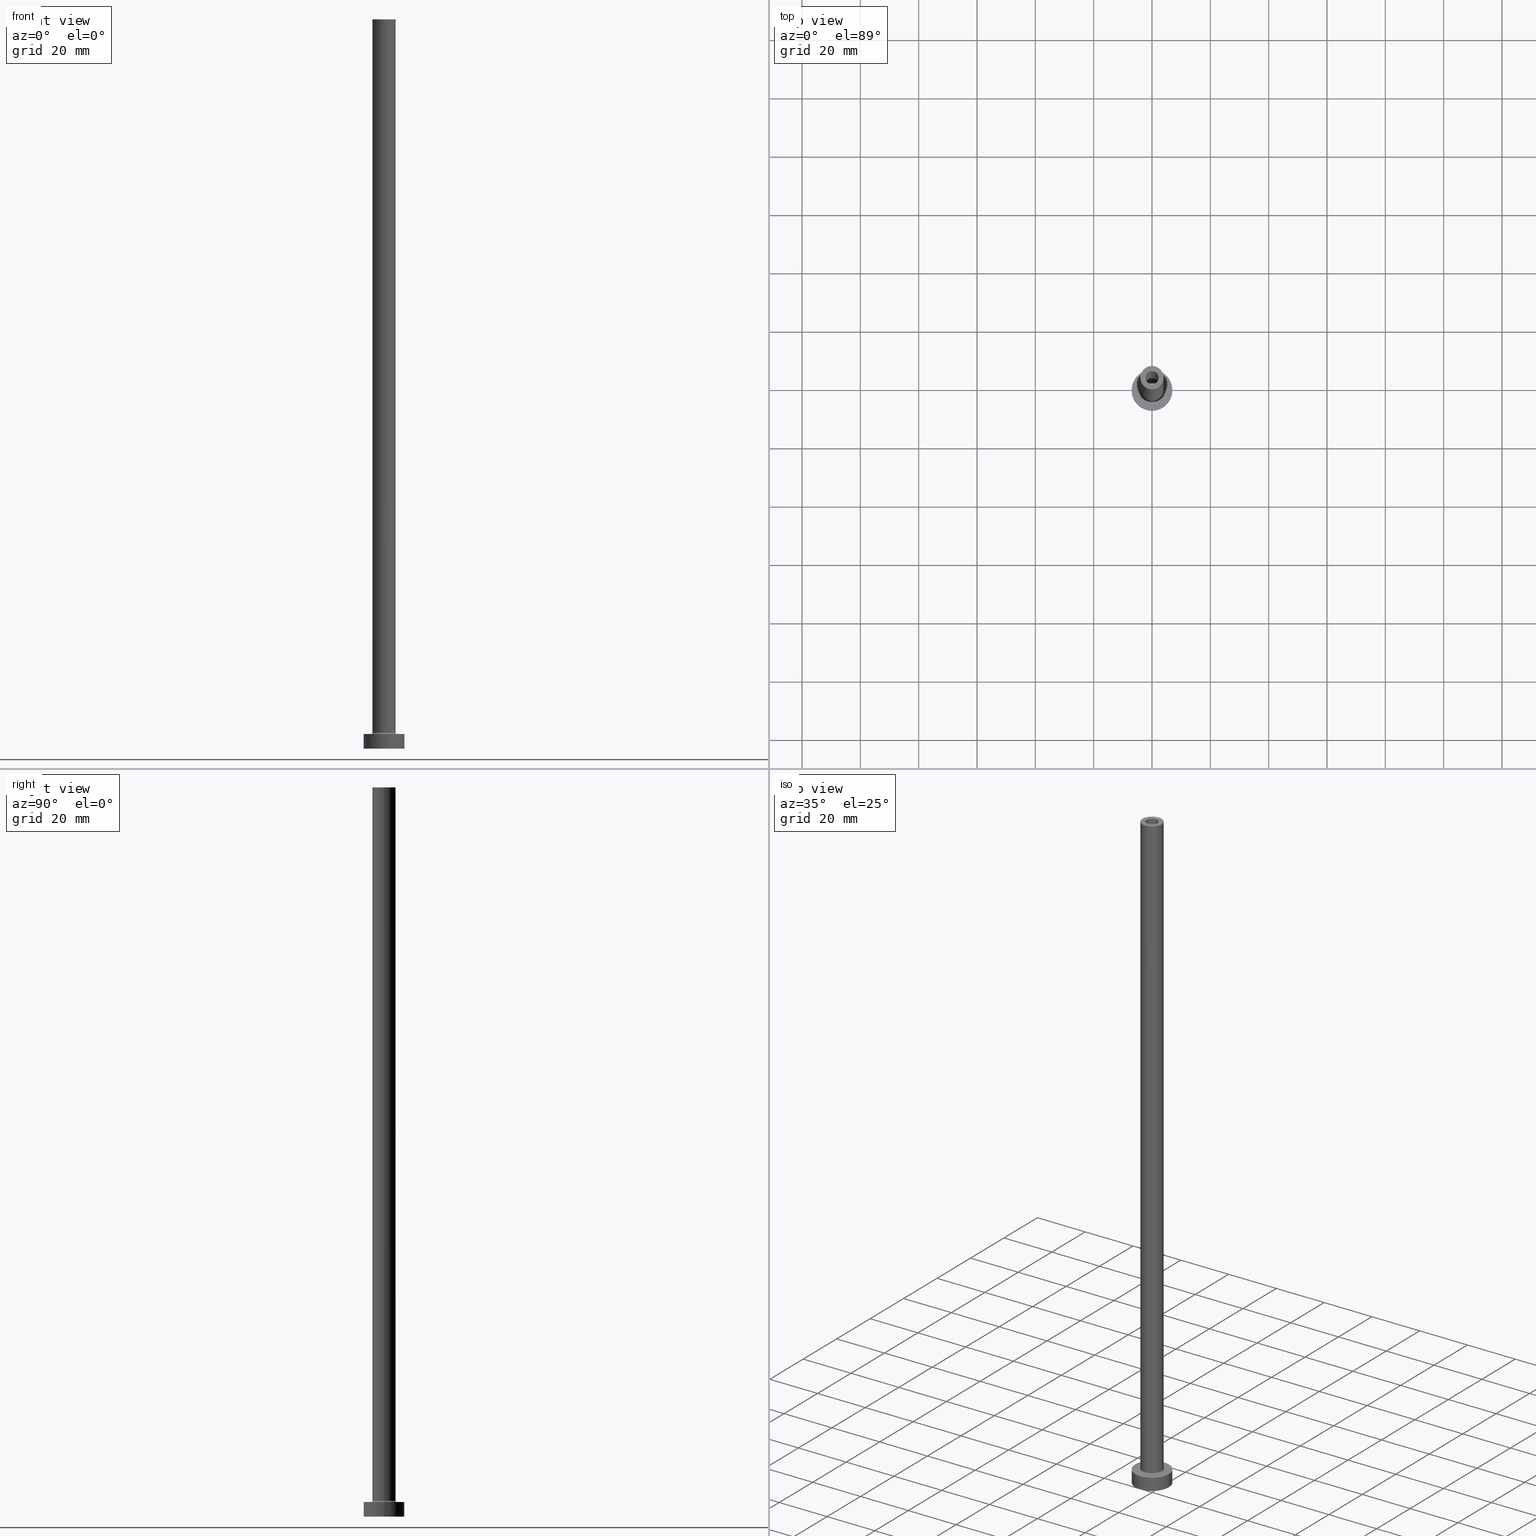
[diagram: canonical four-view strip — front | top / right | iso, engineering-drawing reading convention]
A machine part, canonical four-view strip (front | top / right | iso — engineering-drawing reading convention). The complete STEP part file that produces these views, byte-faithful:
ISO-10303-21;
HEADER;
FILE_DESCRIPTION (( 'STEP AP203' ),
    '1' );
FILE_NAME ('8f3f.STEP',
    '2023-02-13T17:22:15',
    ( '' ),
    ( '' ),
    'SwSTEP 2.0',
    'SolidWorks 2019',
    '' );
FILE_SCHEMA (( 'CONFIG_CONTROL_DESIGN' ));
ENDSEC;

DATA;
#1 = EDGE_LOOP ( 'NONE', ( #97, #18 ) ) ;
#2 = VECTOR ( 'NONE', #304, 1000.000000000000000 ) ;
#3 = LINE ( 'NONE', #150, #13 ) ;
#4 = EDGE_CURVE ( 'NONE', #28, #74, #382, .T. ) ;
#5 = EDGE_LOOP ( 'NONE', ( #38, #221 ) ) ;
#6 = CARTESIAN_POINT ( 'NONE',  ( 0.000000000000000000, 0.000000000000000000, 211.7882250993908713 ) ) ;
#7 = CARTESIAN_POINT ( 'NONE',  ( 4.500000000000000888, 0.000000000000000000, 5.500000000000005329 ) ) ;
#8 = ADVANCED_FACE ( 'NONE', ( #338, #25 ), #15, .T. ) ;
#9 = CARTESIAN_POINT ( 'NONE',  ( 0.000000000000000000, 0.000000000000000000, 205.0000000000000284 ) ) ;
#10 = PERSON_AND_ORGANIZATION ( #187, #435 ) ;
#11 = DIRECTION ( 'NONE',  ( 0.000000000000000000, 0.000000000000000000, -1.000000000000000000 ) ) ;
#12 = DIRECTION ( 'NONE',  ( -0.000000000000000000, -0.000000000000000000, -1.000000000000000000 ) ) ;
#13 = VECTOR ( 'NONE', #454, 1000.000000000000000 ) ;
#14 = DIRECTION ( 'NONE',  ( 0.000000000000000000, 0.000000000000000000, -1.000000000000000000 ) ) ;
#15 = PLANE ( 'NONE',  #316 ) ;
#16 = DIRECTION ( 'NONE',  ( 1.000000000000000000, 0.000000000000000000, 0.000000000000000000 ) ) ;
#17 = CARTESIAN_POINT ( 'NONE',  ( 0.000000000000000000, 0.000000000000000000, 0.000000000000000000 ) ) ;
#18 = ORIENTED_EDGE ( 'NONE', *, *, #226, .F. ) ;
#19 = CC_DESIGN_PERSON_AND_ORGANIZATION_ASSIGNMENT ( #406, #83, ( #320 ) ) ;
#20 = CARTESIAN_POINT ( 'NONE',  ( -2.399999999999999911, 0.000000000000000000, 211.7882250993908713 ) ) ;
#21 = CARTESIAN_POINT ( 'NONE',  ( 0.000000000000000000, 0.000000000000000000, 250.0000000000000000 ) ) ;
#22 = EDGE_LOOP ( 'NONE', ( #173, #68, #275, #366 ) ) ;
#23 = CC_DESIGN_APPROVAL ( #185, ( #254 ) ) ;
#24 = CIRCLE ( 'NONE', #373, 2.399999999999999911 ) ;
#25 = FACE_OUTER_BOUND ( 'NONE', #459, .T. ) ;
#26 = FACE_OUTER_BOUND ( 'NONE', #22, .T. ) ;
#27 = ORIENTED_EDGE ( 'NONE', *, *, #315, .F. ) ;
#28 = VERTEX_POINT ( 'NONE', #126 ) ;
#29 = CIRCLE ( 'NONE', #162, 4.000000000000000000 ) ;
#30 = LOCAL_TIME ( 18, 22, 15.00000000000000000, #417 ) ;
#31 = DIRECTION ( 'NONE',  ( -0.000000000000000000, -0.000000000000000000, -1.000000000000000000 ) ) ;
#32 = CYLINDRICAL_SURFACE ( 'NONE', #243, 2.399999999999999911 ) ;
#33 = MECHANICAL_CONTEXT ( 'NONE', #452, 'mechanical' ) ;
#34 = EDGE_LOOP ( 'NONE', ( #288, #73 ) ) ;
#35 = EDGE_CURVE ( 'NONE', #423, #246, #300, .T. ) ;
#36 = DIRECTION ( 'NONE',  ( -0.000000000000000000, -0.000000000000000000, -1.000000000000000000 ) ) ;
#37 = PRODUCT_DEFINITION_SHAPE ( 'NONE', 'NONE',  #320 ) ;
#38 = ORIENTED_EDGE ( 'NONE', *, *, #104, .T. ) ;
#39 = SECURITY_CLASSIFICATION_LEVEL ( 'unclassified' ) ;
#40 = ORIENTED_EDGE ( 'NONE', *, *, #144, .F. ) ;
#41 = PERSON_AND_ORGANIZATION ( #187, #435 ) ;
#42 = EDGE_CURVE ( 'NONE', #211, #176, #177, .T. ) ;
#43 = CARTESIAN_POINT ( 'NONE',  ( -4.500000000000000888, 5.510910596163088569E-16, 5.000000000000002665 ) ) ;
#44 = PERSON_AND_ORGANIZATION ( #187, #435 ) ;
#45 = CARTESIAN_POINT ( 'NONE',  ( 0.000000000000000000, 0.000000000000000000, 250.0000000000000000 ) ) ;
#46 = SECURITY_CLASSIFICATION ( '', '', #39 ) ;
#47 = AXIS2_PLACEMENT_3D ( 'NONE', #236, #378, #390 ) ;
#48 = FACE_OUTER_BOUND ( 'NONE', #414, .T. ) ;
#49 = EDGE_CURVE ( 'NONE', #324, #415, #403, .T. ) ;
#50 = DIRECTION ( 'NONE',  ( 0.000000000000000000, -1.000000000000000000, 0.000000000000000000 ) ) ;
#51 = DIRECTION ( 'NONE',  ( -0.000000000000000000, -0.000000000000000000, -1.000000000000000000 ) ) ;
#52 = CIRCLE ( 'NONE', #175, 7.000000000000000000 ) ;
#53 = CC_DESIGN_APPROVAL ( #200, ( #46 ) ) ;
#54 = ORIENTED_EDGE ( 'NONE', *, *, #315, .T. ) ;
#55 = DIRECTION ( 'NONE',  ( 1.000000000000000000, 0.000000000000000000, 0.000000000000000000 ) ) ;
#56 = EDGE_CURVE ( 'NONE', #271, #346, #170, .T. ) ;
#57 = FACE_OUTER_BOUND ( 'NONE', #455, .T. ) ;
#58 = LINE ( 'NONE', #308, #130 ) ;
#59 = DIRECTION ( 'NONE',  ( 0.000000000000000000, 0.000000000000000000, 1.000000000000000000 ) ) ;
#60 = VECTOR ( 'NONE', #14, 1000.000000000000000 ) ;
#61 = AXIS2_PLACEMENT_3D ( 'NONE', #432, #147, #113 ) ;
#62 = ADVANCED_FACE ( 'NONE', ( #26 ), #306, .T. ) ;
#63 = CARTESIAN_POINT ( 'NONE',  ( 2.399999999999999911, 2.939152317953647106E-16, 0.000000000000000000 ) ) ;
#64 = DIRECTION ( 'NONE',  ( 0.000000000000000000, 0.000000000000000000, 1.000000000000000000 ) ) ;
#65 = CARTESIAN_POINT ( 'NONE',  ( 0.000000000000000000, 0.000000000000000000, 0.000000000000000000 ) ) ;
#66 = COORDINATED_UNIVERSAL_TIME_OFFSET ( 1, 0, .AHEAD. ) ;
#67 = FACE_BOUND ( 'NONE', #281, .T. ) ;
#68 = ORIENTED_EDGE ( 'NONE', *, *, #430, .T. ) ;
#69 = APPROVAL ( #334, 'NEUR�EN�' ) ;
#70 = DIRECTION ( 'NONE',  ( 1.000000000000000000, 0.000000000000000000, -0.000000000000000000 ) ) ;
#71 = CARTESIAN_POINT ( 'NONE',  ( 0.000000000000000000, 0.000000000000000000, 0.000000000000000000 ) ) ;
#72 = PERSON_AND_ORGANIZATION ( #187, #435 ) ;
#73 = ORIENTED_EDGE ( 'NONE', *, *, #443, .T. ) ;
#74 = VERTEX_POINT ( 'NONE', #93 ) ;
#75 = FACE_OUTER_BOUND ( 'NONE', #204, .T. ) ;
#76 = CARTESIAN_POINT ( 'NONE',  ( 0.000000000000000000, 0.000000000000000000, 250.0000000000000000 ) ) ;
#77 = COORDINATED_UNIVERSAL_TIME_OFFSET ( 1, 0, .AHEAD. ) ;
#78 = FACE_OUTER_BOUND ( 'NONE', #94, .T. ) ;
#79 = TOROIDAL_SURFACE ( 'NONE', #61, 4.500000000000000888, 0.5000000000000000000 ) ;
#80 = CIRCLE ( 'NONE', #349, 2.250000000000000000 ) ;
#81 = EDGE_CURVE ( 'NONE', #28, #309, #117, .T. ) ;
#82 = PLANE ( 'NONE',  #397 ) ;
#83 = PERSON_AND_ORGANIZATION_ROLE ( 'creator' ) ;
#84 = CARTESIAN_POINT ( 'NONE',  ( 0.000000000000000000, 0.000000000000000000, 205.0000000000000284 ) ) ;
#85 = DATE_AND_TIME ( #215, #30 ) ;
#86 = DIRECTION ( 'NONE',  ( 0.000000000000000000, 0.000000000000000000, 1.000000000000000000 ) ) ;
#87 = EDGE_CURVE ( 'NONE', #415, #169, #58, .T. ) ;
#88 = CC_DESIGN_SECURITY_CLASSIFICATION ( #46, ( #254 ) ) ;
#89 = LOCAL_TIME ( 18, 22, 15.00000000000000000, #77 ) ;
#90 = AXIS2_PLACEMENT_3D ( 'NONE', #270, #92, #168 ) ;
#91 = DIRECTION ( 'NONE',  ( -1.000000000000000000, 0.000000000000000000, 0.000000000000000000 ) ) ;
#92 = DIRECTION ( 'NONE',  ( 1.224646799147353207E-16, 1.000000000000000000, -0.000000000000000000 ) ) ;
#93 = CARTESIAN_POINT ( 'NONE',  ( 4.000000000000000000, 4.898587196589412829E-16, 5.500000000000005329 ) ) ;
#94 = EDGE_LOOP ( 'NONE', ( #109, #146 ) ) ;
#95 = CARTESIAN_POINT ( 'NONE',  ( 0.000000000000000000, 0.000000000000000000, 5.000000000000000000 ) ) ;
#96 = AXIS2_PLACEMENT_3D ( 'NONE', #190, #364, #160 ) ;
#97 = ORIENTED_EDGE ( 'NONE', *, *, #49, .F. ) ;
#98 = AXIS2_PLACEMENT_3D ( 'NONE', #267, #231, #55 ) ;
#99 = CC_DESIGN_PERSON_AND_ORGANIZATION_ASSIGNMENT ( #181, #212, ( #46 ) ) ;
#100 = APPLICATION_PROTOCOL_DEFINITION ( 'international standard', 'config_control_design', 1994, #452 ) ;
#101 = ORIENTED_EDGE ( 'NONE', *, *, #137, .F. ) ;
#102 = DIRECTION ( 'NONE',  ( 0.000000000000000000, 0.000000000000000000, 1.000000000000000000 ) ) ;
#103 = DIRECTION ( 'NONE',  ( 0.000000000000000000, 0.000000000000000000, 1.000000000000000000 ) ) ;
#104 = EDGE_CURVE ( 'NONE', #176, #211, #248, .T. ) ;
#105 = ORIENTED_EDGE ( 'NONE', *, *, #421, .F. ) ;
#106 = LOCAL_TIME ( 18, 22, 15.00000000000000000, #66 ) ;
#107 = CARTESIAN_POINT ( 'NONE',  ( 0.000000000000000000, 0.000000000000000000, 211.7882250993908713 ) ) ;
#108 = CALENDAR_DATE ( 2023, 13, 2 ) ;
#109 = ORIENTED_EDGE ( 'NONE', *, *, #400, .T. ) ;
#110 = DIRECTION ( 'NONE',  ( 1.000000000000000000, 0.000000000000000000, 0.000000000000000000 ) ) ;
#111 = DIRECTION ( 'NONE',  ( 1.000000000000000000, 0.000000000000000000, 0.000000000000000000 ) ) ;
#112 = APPROVAL_DATE_TIME ( #207, #185 ) ;
#113 = DIRECTION ( 'NONE',  ( 1.000000000000000000, 0.000000000000000000, 0.000000000000000000 ) ) ;
#114 = EDGE_CURVE ( 'NONE', #339, #169, #24, .T. ) ;
#115 = SHAPE_DEFINITION_REPRESENTATION ( #37, #313 ) ;
#116 = DIRECTION ( 'NONE',  ( -0.000000000000000000, -0.000000000000000000, -1.000000000000000000 ) ) ;
#117 = CIRCLE ( 'NONE', #90, 0.5000000000000004441 ) ;
#118 = APPROVAL_ROLE ( '' ) ;
#119 = FACE_BOUND ( 'NONE', #34, .T. ) ;
#120 = PRODUCT_RELATED_PRODUCT_CATEGORY ( 'detail', '', ( #152 ) ) ;
#121 = AXIS2_PLACEMENT_3D ( 'NONE', #193, #448, #199 ) ;
#122 = CIRCLE ( 'NONE', #224, 2.399999999999999911 ) ;
#123 = FACE_OUTER_BOUND ( 'NONE', #396, .T. ) ;
#124 = ORIENTED_EDGE ( 'NONE', *, *, #178, .F. ) ;
#125 = EDGE_CURVE ( 'NONE', #169, #339, #278, .T. ) ;
#126 = CARTESIAN_POINT ( 'NONE',  ( -4.000000000000000000, 0.000000000000000000, 5.500000000000005329 ) ) ;
#127 = CYLINDRICAL_SURFACE ( 'NONE', #121, 2.250000000000000000 ) ;
#128 = ORIENTED_EDGE ( 'NONE', *, *, #400, .F. ) ;
#129 = EDGE_LOOP ( 'NONE', ( #461, #237, #132, #352 ) ) ;
#130 = VECTOR ( 'NONE', #450, 1000.000000000000000 ) ;
#131 = CARTESIAN_POINT ( 'NONE',  ( -4.000000000000000000, 0.000000000000000000, 250.0000000000000000 ) ) ;
#132 = ORIENTED_EDGE ( 'NONE', *, *, #137, .T. ) ;
#133 = ORIENTED_EDGE ( 'NONE', *, *, #56, .T. ) ;
#134 = CARTESIAN_POINT ( 'NONE',  ( 4.000000000000000000, 4.898587196589412829E-16, 250.0000000000000000 ) ) ;
#135 = ORIENTED_EDGE ( 'NONE', *, *, #56, .F. ) ;
#136 = VERTEX_POINT ( 'NONE', #353 ) ;
#137 = EDGE_CURVE ( 'NONE', #205, #176, #460, .T. ) ;
#138 = CARTESIAN_POINT ( 'NONE',  ( 0.000000000000000000, 0.000000000000000000, 0.000000000000000000 ) ) ;
#139 = ORIENTED_EDGE ( 'NONE', *, *, #4, .F. ) ;
#140 = AXIS2_PLACEMENT_3D ( 'NONE', #17, #59, #345 ) ;
#141 = AXIS2_PLACEMENT_3D ( 'NONE', #153, #294, #298 ) ;
#142 = DIRECTION ( 'NONE',  ( 1.000000000000000000, 0.000000000000000000, 0.000000000000000000 ) ) ;
#143 = ORIENTED_EDGE ( 'NONE', *, *, #114, .T. ) ;
#144 = EDGE_CURVE ( 'NONE', #228, #271, #3, .T. ) ;
#145 = DIRECTION ( 'NONE',  ( 0.000000000000000000, 0.000000000000000000, -1.000000000000000000 ) ) ;
#146 = ORIENTED_EDGE ( 'NONE', *, *, #421, .T. ) ;
#147 = DIRECTION ( 'NONE',  ( 0.000000000000000000, 0.000000000000000000, 1.000000000000000000 ) ) ;
#148 = ORIENTED_EDGE ( 'NONE', *, *, #196, .T. ) ;
#149 = AXIS2_PLACEMENT_3D ( 'NONE', #7, #50, #161 ) ;
#150 = CARTESIAN_POINT ( 'NONE',  ( 7.000000000000000000, 8.572527594031473190E-16, 5.000000000000000000 ) ) ;
#151 = ORIENTED_EDGE ( 'NONE', *, *, #49, .T. ) ;
#152 = PRODUCT ( '8f3f', '8f3f', '', ( #33 ) ) ;
#153 = CARTESIAN_POINT ( 'NONE',  ( 0.000000000000000000, 0.000000000000000000, 5.000000000000000000 ) ) ;
#154 = ADVANCED_FACE ( 'NONE', ( #67, #321 ), #290, .F. ) ;
#155 = PLANE ( 'NONE',  #141 ) ;
#156 = AXIS2_PLACEMENT_3D ( 'NONE', #444, #348, #301 ) ;
#157 = AXIS2_PLACEMENT_3D ( 'NONE', #166, #412, #351 ) ;
#158 = LINE ( 'NONE', #291, #404 ) ;
#159 = CC_DESIGN_PERSON_AND_ORGANIZATION_ASSIGNMENT ( #10, #220, ( #152 ) ) ;
#160 = DIRECTION ( 'NONE',  ( -1.000000000000000000, 0.000000000000000000, 0.000000000000000000 ) ) ;
#161 = DIRECTION ( 'NONE',  ( 0.000000000000000000, 0.000000000000000000, -1.000000000000000000 ) ) ;
#162 = AXIS2_PLACEMENT_3D ( 'NONE', #401, #399, #219 ) ;
#163 = CARTESIAN_POINT ( 'NONE',  ( 0.000000000000000000, 0.000000000000000000, 5.000000000000000000 ) ) ;
#164 = CARTESIAN_POINT ( 'NONE',  ( -7.000000000000000000, 0.000000000000000000, 5.000000000000000000 ) ) ;
#165 = APPROVAL_ROLE ( '' ) ;
#166 = CARTESIAN_POINT ( 'NONE',  ( 0.000000000000000000, 0.000000000000000000, 205.0000000000000284 ) ) ;
#167 = CARTESIAN_POINT ( 'NONE',  ( -7.000000000000000000, 0.000000000000000000, 0.000000000000000000 ) ) ;
#168 = DIRECTION ( 'NONE',  ( -1.000000000000000000, 1.224646799147351482E-16, 0.000000000000000000 ) ) ;
#169 = VERTEX_POINT ( 'NONE', #63 ) ;
#170 = CIRCLE ( 'NONE', #140, 7.000000000000000000 ) ;
#171 = LINE ( 'NONE', #134, #194 ) ;
#172 = ADVANCED_FACE ( 'NONE', ( #244 ), #239, .F. ) ;
#173 = ORIENTED_EDGE ( 'NONE', *, *, #222, .F. ) ;
#174 = CARTESIAN_POINT ( 'NONE',  ( 0.000000000000000000, 0.000000000000000000, 0.000000000000000000 ) ) ;
#175 = AXIS2_PLACEMENT_3D ( 'NONE', #174, #458, #142 ) ;
#176 = VERTEX_POINT ( 'NONE', #384 ) ;
#177 = CIRCLE ( 'NONE', #157, 2.250000000000000000 ) ;
#178 = EDGE_CURVE ( 'NONE', #346, #271, #52, .T. ) ;
#179 = CARTESIAN_POINT ( 'NONE',  ( 0.000000000000000000, 0.000000000000000000, 250.0000000000000000 ) ) ;
#180 = ORIENTED_EDGE ( 'NONE', *, *, #443, .F. ) ;
#181 = PERSON_AND_ORGANIZATION ( #187, #435 ) ;
#182 = DIRECTION ( 'NONE',  ( 1.000000000000000000, 0.000000000000000000, 0.000000000000000000 ) ) ;
#183 =( NAMED_UNIT ( * ) PLANE_ANGLE_UNIT ( ) SI_UNIT ( $, .RADIAN. ) );
#184 = DATE_AND_TIME ( #186, #347 ) ;
#185 = APPROVAL ( #436, 'NEUR�EN�' ) ;
#186 = CALENDAR_DATE ( 2023, 13, 2 ) ;
#187 = PERSON ( 'NEUR�EN�', 'NEUR�EN�', 'NEUR�EN�', ('NEUR�EN�'), ('NEUR�EN�'), ('NEUR�EN�') ) ;
#188 = ADVANCED_FACE ( 'NONE', ( #280 ), #426, .T. ) ;
#189 = DIRECTION ( 'NONE',  ( 1.000000000000000000, 0.000000000000000000, 0.000000000000000000 ) ) ;
#190 = CARTESIAN_POINT ( 'NONE',  ( 0.000000000000000000, 0.000000000000000000, 250.0000000000000000 ) ) ;
#191 = DATE_AND_TIME ( #408, #287 ) ;
#192 = VECTOR ( 'NONE', #145, 1000.000000000000000 ) ;
#193 = CARTESIAN_POINT ( 'NONE',  ( 0.000000000000000000, 0.000000000000000000, 250.0000000000000000 ) ) ;
#194 = VECTOR ( 'NONE', #12, 1000.000000000000000 ) ;
#195 = ORIENTED_EDGE ( 'NONE', *, *, #81, .F. ) ;
#196 = EDGE_CURVE ( 'NONE', #205, #136, #216, .T. ) ;
#197 = CARTESIAN_POINT ( 'NONE',  ( -2.399999999999999911, 0.000000000000000000, 0.000000000000000000 ) ) ;
#198 = ORIENTED_EDGE ( 'NONE', *, *, #365, .T. ) ;
#199 = DIRECTION ( 'NONE',  ( -1.000000000000000000, 0.000000000000000000, 0.000000000000000000 ) ) ;
#200 = APPROVAL ( #329, 'NEUR�EN�' ) ;
#201 = CARTESIAN_POINT ( 'NONE',  ( 2.250000000000000000, 2.755455298081543792E-16, 250.0000000000000000 ) ) ;
#202 = AXIS2_PLACEMENT_3D ( 'NONE', #272, #86, #16 ) ;
#203 =( GEOMETRIC_REPRESENTATION_CONTEXT ( 3 ) GLOBAL_UNCERTAINTY_ASSIGNED_CONTEXT ( ( #361 ) ) GLOBAL_UNIT_ASSIGNED_CONTEXT ( ( #284, #183, #431 ) ) REPRESENTATION_CONTEXT ( 'NONE', 'WORKASPACE' ) );
#204 = EDGE_LOOP ( 'NONE', ( #277, #343, #429, #245 ) ) ;
#205 = VERTEX_POINT ( 'NONE', #424 ) ;
#206 = DIRECTION ( 'NONE',  ( 0.000000000000000000, 0.000000000000000000, 1.000000000000000000 ) ) ;
#207 = DATE_AND_TIME ( #383, #89 ) ;
#208 = DIRECTION ( 'NONE',  ( 1.000000000000000000, 0.000000000000000000, 0.000000000000000000 ) ) ;
#209 = ORIENTED_EDGE ( 'NONE', *, *, #114, .F. ) ;
#210 = CLOSED_SHELL ( 'NONE', ( #257, #214, #172, #62, #340, #188, #269, #154, #279, #8, #437, #234, #303, #380 ) ) ;
#211 = VERTEX_POINT ( 'NONE', #388 ) ;
#212 = PERSON_AND_ORGANIZATION_ROLE ( 'classification_officer' ) ;
#213 = ORIENTED_EDGE ( 'NONE', *, *, #144, .T. ) ;
#214 = ADVANCED_FACE ( 'NONE', ( #358 ), #32, .F. ) ;
#215 = CALENDAR_DATE ( 2023, 13, 2 ) ;
#216 = CIRCLE ( 'NONE', #276, 2.250000000000000000 ) ;
#217 = AXIS2_PLACEMENT_3D ( 'NONE', #163, #326, #255 ) ;
#218 = DESIGN_CONTEXT ( 'detailed design', #293, 'design' ) ;
#219 = DIRECTION ( 'NONE',  ( 1.000000000000000000, 0.000000000000000000, 0.000000000000000000 ) ) ;
#220 = PERSON_AND_ORGANIZATION_ROLE ( 'design_owner' ) ;
#221 = ORIENTED_EDGE ( 'NONE', *, *, #42, .T. ) ;
#222 = EDGE_CURVE ( 'NONE', #246, #423, #29, .T. ) ;
#223 = CARTESIAN_POINT ( 'NONE',  ( 4.000000000000000000, 4.898587196589412829E-16, 250.0000000000000000 ) ) ;
#224 = AXIS2_PLACEMENT_3D ( 'NONE', #438, #332, #110 ) ;
#225 = CARTESIAN_POINT ( 'NONE',  ( 4.500000000000000888, 0.000000000000000000, 5.000000000000002665 ) ) ;
#226 = EDGE_CURVE ( 'NONE', #415, #324, #122, .T. ) ;
#227 = LINE ( 'NONE', #131, #440 ) ;
#228 = VERTEX_POINT ( 'NONE', #330 ) ;
#229 = AXIS2_PLACEMENT_3D ( 'NONE', #422, #31, #385 ) ;
#230 = CC_DESIGN_APPROVAL ( #69, ( #320 ) ) ;
#231 = DIRECTION ( 'NONE',  ( 0.000000000000000000, 0.000000000000000000, 1.000000000000000000 ) ) ;
#232 = ORIENTED_EDGE ( 'NONE', *, *, #357, .F. ) ;
#233 = EDGE_LOOP ( 'NONE', ( #247, #283 ) ) ;
#234 = ADVANCED_FACE ( 'NONE', ( #48 ), #371, .F. ) ;
#235 = MANIFOLD_SOLID_BREP ( 'Odebrat vysunut�m4', #210 ) ;
#236 = CARTESIAN_POINT ( 'NONE',  ( 0.000000000000000000, 0.000000000000000000, 205.0000000000000284 ) ) ;
#237 = ORIENTED_EDGE ( 'NONE', *, *, #299, .T. ) ;
#238 = CARTESIAN_POINT ( 'NONE',  ( 0.000000000000000000, 0.000000000000000000, 5.000000000000000000 ) ) ;
#239 = TOROIDAL_SURFACE ( 'NONE', #456, 4.500000000000000888, 0.5000000000000000000 ) ;
#240 = APPROVAL_PERSON_ORGANIZATION ( #297, #185, #118 ) ;
#241 = CARTESIAN_POINT ( 'NONE',  ( 0.000000000000000000, 0.000000000000000000, 5.500000000000005329 ) ) ;
#242 = EDGE_LOOP ( 'NONE', ( #40, #128, #54, #411 ) ) ;
#243 = AXIS2_PLACEMENT_3D ( 'NONE', #107, #250, #335 ) ;
#244 = FACE_OUTER_BOUND ( 'NONE', #379, .T. ) ;
#245 = ORIENTED_EDGE ( 'NONE', *, *, #4, .T. ) ;
#246 = VERTEX_POINT ( 'NONE', #223 ) ;
#247 = ORIENTED_EDGE ( 'NONE', *, *, #196, .F. ) ;
#248 = CIRCLE ( 'NONE', #47, 2.250000000000000000 ) ;
#249 = PERSON_AND_ORGANIZATION_ROLE ( 'creator' ) ;
#250 = DIRECTION ( 'NONE',  ( 0.000000000000000000, 0.000000000000000000, -1.000000000000000000 ) ) ;
#251 = DIRECTION ( 'NONE',  ( -1.000000000000000000, 0.000000000000000000, 0.000000000000000000 ) ) ;
#252 = ORIENTED_EDGE ( 'NONE', *, *, #125, .F. ) ;
#253 = AXIS2_PLACEMENT_3D ( 'NONE', #138, #103, #70 ) ;
#254 = PRODUCT_DEFINITION_FORMATION_WITH_SPECIFIED_SOURCE ( 'LIBOVOLN�', '', #152, .NOT_KNOWN. ) ;
#255 = DIRECTION ( 'NONE',  ( 1.000000000000000000, 0.000000000000000000, 0.000000000000000000 ) ) ;
#256 = AXIS2_PLACEMENT_3D ( 'NONE', #21, #446, #453 ) ;
#257 = ADVANCED_FACE ( 'NONE', ( #262 ), #258, .F. ) ;
#258 = CYLINDRICAL_SURFACE ( 'NONE', #96, 2.250000000000000000 ) ;
#259 = AXIS2_PLACEMENT_3D ( 'NONE', #6, #11, #251 ) ;
#260 = AXIS2_PLACEMENT_3D ( 'NONE', #65, #102, #111 ) ;
#261 = CIRCLE ( 'NONE', #363, 4.500000000000000888 ) ;
#262 = FACE_OUTER_BOUND ( 'NONE', #442, .T. ) ;
#263 = APPROVAL_DATE_TIME ( #191, #69 ) ;
#264 = EDGE_CURVE ( 'NONE', #74, #311, #289, .T. ) ;
#265 = DIRECTION ( 'NONE',  ( 1.000000000000000000, 0.000000000000000000, 0.000000000000000000 ) ) ;
#266 = CYLINDRICAL_SURFACE ( 'NONE', #325, 7.000000000000000000 ) ;
#267 = CARTESIAN_POINT ( 'NONE',  ( 0.000000000000000000, 0.000000000000000000, 250.0000000000000000 ) ) ;
#268 = CIRCLE ( 'NONE', #156, 7.000000000000000000 ) ;
#269 = ADVANCED_FACE ( 'NONE', ( #119, #78 ), #155, .T. ) ;
#270 = CARTESIAN_POINT ( 'NONE',  ( -4.500000000000000888, 5.510910596163089556E-16, 5.500000000000005329 ) ) ;
#271 = VERTEX_POINT ( 'NONE', #439 ) ;
#272 = CARTESIAN_POINT ( 'NONE',  ( 0.000000000000000000, 0.000000000000000000, 5.500000000000005329 ) ) ;
#273 = ORIENTED_EDGE ( 'NONE', *, *, #81, .T. ) ;
#274 = EDGE_LOOP ( 'NONE', ( #124, #135 ) ) ;
#275 = ORIENTED_EDGE ( 'NONE', *, *, #357, .T. ) ;
#276 = AXIS2_PLACEMENT_3D ( 'NONE', #179, #282, #318 ) ;
#277 = ORIENTED_EDGE ( 'NONE', *, *, #430, .F. ) ;
#278 = CIRCLE ( 'NONE', #394, 2.399999999999999911 ) ;
#279 = ADVANCED_FACE ( 'NONE', ( #75 ), #328, .T. ) ;
#280 = FACE_OUTER_BOUND ( 'NONE', #242, .T. ) ;
#281 = EDGE_LOOP ( 'NONE', ( #209, #252 ) ) ;
#282 = DIRECTION ( 'NONE',  ( 0.000000000000000000, 0.000000000000000000, 1.000000000000000000 ) ) ;
#283 = ORIENTED_EDGE ( 'NONE', *, *, #299, .F. ) ;
#284 =( LENGTH_UNIT ( ) NAMED_UNIT ( * ) SI_UNIT ( .MILLI., .METRE. ) );
#285 = CARTESIAN_POINT ( 'NONE',  ( 0.000000000000000000, 0.000000000000000000, 0.000000000000000000 ) ) ;
#286 = CC_DESIGN_DATE_AND_TIME_ASSIGNMENT ( #184, #393, ( #46 ) ) ;
#287 = LOCAL_TIME ( 18, 22, 15.00000000000000000, #305 ) ;
#288 = ORIENTED_EDGE ( 'NONE', *, *, #350, .T. ) ;
#289 = CIRCLE ( 'NONE', #149, 0.5000000000000004441 ) ;
#290 = PLANE ( 'NONE',  #253 ) ;
#291 = CARTESIAN_POINT ( 'NONE',  ( -7.000000000000000000, 0.000000000000000000, 5.000000000000000000 ) ) ;
#292 = ORIENTED_EDGE ( 'NONE', *, *, #87, .F. ) ;
#293 = APPLICATION_CONTEXT ( 'configuration controlled 3d designs of mechanical parts and assemblies' ) ;
#294 = DIRECTION ( 'NONE',  ( 0.000000000000000000, 0.000000000000000000, 1.000000000000000000 ) ) ;
#295 = APPROVAL_PERSON_ORGANIZATION ( #427, #200, #317 ) ;
#296 = CARTESIAN_POINT ( 'NONE',  ( -2.399999999999999911, 0.000000000000000000, 205.0000000000000284 ) ) ;
#297 = PERSON_AND_ORGANIZATION ( #187, #435 ) ;
#298 = DIRECTION ( 'NONE',  ( 1.000000000000000000, 0.000000000000000000, -0.000000000000000000 ) ) ;
#299 = EDGE_CURVE ( 'NONE', #136, #205, #80, .T. ) ;
#300 = CIRCLE ( 'NONE', #98, 4.000000000000000000 ) ;
#301 = DIRECTION ( 'NONE',  ( 1.000000000000000000, 0.000000000000000000, 0.000000000000000000 ) ) ;
#302 = DIRECTION ( 'NONE',  ( 0.000000000000000000, 0.000000000000000000, 1.000000000000000000 ) ) ;
#303 = ADVANCED_FACE ( 'NONE', ( #333, #405 ), #82, .F. ) ;
#304 = DIRECTION ( 'NONE',  ( 0.000000000000000000, 0.000000000000000000, -1.000000000000000000 ) ) ;
#305 = COORDINATED_UNIVERSAL_TIME_OFFSET ( 1, 0, .AHEAD. ) ;
#306 = CYLINDRICAL_SURFACE ( 'NONE', #256, 4.000000000000000000 ) ;
#307 = LINE ( 'NONE', #201, #2 ) ;
#308 = CARTESIAN_POINT ( 'NONE',  ( 2.399999999999999911, 2.939152317953647106E-16, 211.7882250993908713 ) ) ;
#309 = VERTEX_POINT ( 'NONE', #43 ) ;
#310 = CARTESIAN_POINT ( 'NONE',  ( 0.000000000000000000, 0.000000000000000000, 5.000000000000000000 ) ) ;
#311 = VERTEX_POINT ( 'NONE', #225 ) ;
#312 = ORIENTED_EDGE ( 'NONE', *, *, #104, .F. ) ;
#313 = ADVANCED_BREP_SHAPE_REPRESENTATION ( '8f3f', ( #235, #260 ), #203 ) ;
#314 = ORIENTED_EDGE ( 'NONE', *, *, #386, .T. ) ;
#315 = EDGE_CURVE ( 'NONE', #359, #346, #158, .T. ) ;
#316 = AXIS2_PLACEMENT_3D ( 'NONE', #445, #206, #407 ) ;
#317 = APPROVAL_ROLE ( '' ) ;
#318 = DIRECTION ( 'NONE',  ( 1.000000000000000000, 0.000000000000000000, 0.000000000000000000 ) ) ;
#319 = ORIENTED_EDGE ( 'NONE', *, *, #125, .T. ) ;
#320 = PRODUCT_DEFINITION ( 'NEZN�M�', '', #254, #218 ) ;
#321 = FACE_OUTER_BOUND ( 'NONE', #274, .T. ) ;
#322 = COORDINATED_UNIVERSAL_TIME_OFFSET ( 1, 0, .AHEAD. ) ;
#323 = CARTESIAN_POINT ( 'NONE',  ( -2.250000000000000000, 0.000000000000000000, 250.0000000000000000 ) ) ;
#324 = VERTEX_POINT ( 'NONE', #296 ) ;
#325 = AXIS2_PLACEMENT_3D ( 'NONE', #310, #341, #91 ) ;
#326 = DIRECTION ( 'NONE',  ( -0.000000000000000000, -0.000000000000000000, -1.000000000000000000 ) ) ;
#327 = DATE_AND_TIME ( #108, #106 ) ;
#328 = CYLINDRICAL_SURFACE ( 'NONE', #336, 4.000000000000000000 ) ;
#329 = APPROVAL_STATUS ( 'not_yet_approved' ) ;
#330 = CARTESIAN_POINT ( 'NONE',  ( 7.000000000000000000, 8.572527594031473190E-16, 5.000000000000000000 ) ) ;
#331 = DATE_TIME_ROLE ( 'creation_date' ) ;
#332 = DIRECTION ( 'NONE',  ( 0.000000000000000000, 0.000000000000000000, 1.000000000000000000 ) ) ;
#333 = FACE_BOUND ( 'NONE', #5, .T. ) ;
#334 = APPROVAL_STATUS ( 'not_yet_approved' ) ;
#335 = DIRECTION ( 'NONE',  ( -1.000000000000000000, 0.000000000000000000, 0.000000000000000000 ) ) ;
#336 = AXIS2_PLACEMENT_3D ( 'NONE', #76, #116, #368 ) ;
#337 = CARTESIAN_POINT ( 'NONE',  ( 2.399999999999999911, 2.939152317953647106E-16, 205.0000000000000284 ) ) ;
#338 = FACE_BOUND ( 'NONE', #233, .T. ) ;
#339 = VERTEX_POINT ( 'NONE', #197 ) ;
#340 = ADVANCED_FACE ( 'NONE', ( #57 ), #266, .T. ) ;
#341 = DIRECTION ( 'NONE',  ( -0.000000000000000000, -0.000000000000000000, -1.000000000000000000 ) ) ;
#342 = DIRECTION ( 'NONE',  ( 1.000000000000000000, 0.000000000000000000, 0.000000000000000000 ) ) ;
#343 = ORIENTED_EDGE ( 'NONE', *, *, #35, .F. ) ;
#344 = LINE ( 'NONE', #20, #60 ) ;
#345 = DIRECTION ( 'NONE',  ( 1.000000000000000000, 0.000000000000000000, 0.000000000000000000 ) ) ;
#346 = VERTEX_POINT ( 'NONE', #167 ) ;
#347 = LOCAL_TIME ( 18, 22, 15.00000000000000000, #322 ) ;
#348 = DIRECTION ( 'NONE',  ( 0.000000000000000000, 0.000000000000000000, 1.000000000000000000 ) ) ;
#349 = AXIS2_PLACEMENT_3D ( 'NONE', #45, #398, #189 ) ;
#350 = EDGE_CURVE ( 'NONE', #311, #309, #261, .T. ) ;
#351 = DIRECTION ( 'NONE',  ( 1.000000000000000000, 0.000000000000000000, 0.000000000000000000 ) ) ;
#352 = ORIENTED_EDGE ( 'NONE', *, *, #42, .F. ) ;
#353 = CARTESIAN_POINT ( 'NONE',  ( 2.250000000000000000, 2.755455298081543792E-16, 250.0000000000000000 ) ) ;
#354 = ORIENTED_EDGE ( 'NONE', *, *, #264, .F. ) ;
#355 = AXIS2_PLACEMENT_3D ( 'NONE', #95, #302, #377 ) ;
#356 = EDGE_LOOP ( 'NONE', ( #151, #420, #319, #362 ) ) ;
#357 = EDGE_CURVE ( 'NONE', #74, #28, #418, .T. ) ;
#358 = FACE_OUTER_BOUND ( 'NONE', #356, .T. ) ;
#359 = VERTEX_POINT ( 'NONE', #164 ) ;
#360 = DIRECTION ( 'NONE',  ( -0.000000000000000000, -0.000000000000000000, -1.000000000000000000 ) ) ;
#361 = UNCERTAINTY_MEASURE_WITH_UNIT (LENGTH_MEASURE( 1.000000000000000082E-05 ), #284, 'distance_accuracy_value', 'NONE');
#362 = ORIENTED_EDGE ( 'NONE', *, *, #386, .F. ) ;
#363 = AXIS2_PLACEMENT_3D ( 'NONE', #238, #374, #375 ) ;
#364 = DIRECTION ( 'NONE',  ( 0.000000000000000000, 0.000000000000000000, -1.000000000000000000 ) ) ;
#365 = EDGE_CURVE ( 'NONE', #136, #211, #307, .T. ) ;
#366 = ORIENTED_EDGE ( 'NONE', *, *, #392, .F. ) ;
#367 = DIRECTION ( 'NONE',  ( 1.000000000000000000, 0.000000000000000000, -0.000000000000000000 ) ) ;
#368 = DIRECTION ( 'NONE',  ( -1.000000000000000000, 0.000000000000000000, 0.000000000000000000 ) ) ;
#369 = CC_DESIGN_PERSON_AND_ORGANIZATION_ASSIGNMENT ( #44, #249, ( #254 ) ) ;
#370 = DIRECTION ( 'NONE',  ( -0.000000000000000000, -0.000000000000000000, -1.000000000000000000 ) ) ;
#371 = CYLINDRICAL_SURFACE ( 'NONE', #259, 2.399999999999999911 ) ;
#372 = FACE_OUTER_BOUND ( 'NONE', #129, .T. ) ;
#373 = AXIS2_PLACEMENT_3D ( 'NONE', #71, #36, #208 ) ;
#374 = DIRECTION ( 'NONE',  ( -0.000000000000000000, -0.000000000000000000, -1.000000000000000000 ) ) ;
#375 = DIRECTION ( 'NONE',  ( 1.000000000000000000, 0.000000000000000000, 0.000000000000000000 ) ) ;
#376 = DIRECTION ( 'NONE',  ( 0.000000000000000000, 0.000000000000000000, 1.000000000000000000 ) ) ;
#377 = DIRECTION ( 'NONE',  ( 1.000000000000000000, 0.000000000000000000, 0.000000000000000000 ) ) ;
#378 = DIRECTION ( 'NONE',  ( 0.000000000000000000, 0.000000000000000000, 1.000000000000000000 ) ) ;
#379 = EDGE_LOOP ( 'NONE', ( #139, #273, #451, #354 ) ) ;
#380 = ADVANCED_FACE ( 'NONE', ( #372 ), #127, .F. ) ;
#381 = CARTESIAN_POINT ( 'NONE',  ( -4.000000000000000000, 0.000000000000000000, 250.0000000000000000 ) ) ;
#382 = CIRCLE ( 'NONE', #441, 4.000000000000000000 ) ;
#383 = CALENDAR_DATE ( 2023, 13, 2 ) ;
#384 = CARTESIAN_POINT ( 'NONE',  ( -2.250000000000000000, 0.000000000000000000, 205.0000000000000284 ) ) ;
#385 = DIRECTION ( 'NONE',  ( -1.000000000000000000, 0.000000000000000000, 0.000000000000000000 ) ) ;
#386 = EDGE_CURVE ( 'NONE', #324, #339, #344, .T. ) ;
#387 = ORIENTED_EDGE ( 'NONE', *, *, #264, .T. ) ;
#388 = CARTESIAN_POINT ( 'NONE',  ( 2.250000000000000000, 2.755455298081543792E-16, 205.0000000000000284 ) ) ;
#389 = ORIENTED_EDGE ( 'NONE', *, *, #35, .T. ) ;
#390 = DIRECTION ( 'NONE',  ( 1.000000000000000000, 0.000000000000000000, 0.000000000000000000 ) ) ;
#391 = APPLICATION_PROTOCOL_DEFINITION ( 'international standard', 'config_control_design', 1994, #293 ) ;
#392 = EDGE_CURVE ( 'NONE', #423, #28, #227, .T. ) ;
#393 = DATE_TIME_ROLE ( 'classification_date' ) ;
#394 = AXIS2_PLACEMENT_3D ( 'NONE', #285, #360, #182 ) ;
#395 = APPROVAL_PERSON_ORGANIZATION ( #72, #69, #165 ) ;
#396 = EDGE_LOOP ( 'NONE', ( #195, #232, #387, #180 ) ) ;
#397 = AXIS2_PLACEMENT_3D ( 'NONE', #9, #434, #367 ) ;
#398 = DIRECTION ( 'NONE',  ( 0.000000000000000000, 0.000000000000000000, 1.000000000000000000 ) ) ;
#399 = DIRECTION ( 'NONE',  ( 0.000000000000000000, 0.000000000000000000, 1.000000000000000000 ) ) ;
#400 = EDGE_CURVE ( 'NONE', #359, #228, #402, .T. ) ;
#401 = CARTESIAN_POINT ( 'NONE',  ( 0.000000000000000000, 0.000000000000000000, 250.0000000000000000 ) ) ;
#402 = CIRCLE ( 'NONE', #355, 7.000000000000000000 ) ;
#403 = CIRCLE ( 'NONE', #416, 2.399999999999999911 ) ;
#404 = VECTOR ( 'NONE', #370, 1000.000000000000000 ) ;
#405 = FACE_OUTER_BOUND ( 'NONE', #1, .T. ) ;
#406 = PERSON_AND_ORGANIZATION ( #187, #435 ) ;
#407 = DIRECTION ( 'NONE',  ( 1.000000000000000000, 0.000000000000000000, -0.000000000000000000 ) ) ;
#408 = CALENDAR_DATE ( 2023, 13, 2 ) ;
#409 = DIRECTION ( 'NONE',  ( 0.000000000000000000, 0.000000000000000000, 1.000000000000000000 ) ) ;
#410 = ORIENTED_EDGE ( 'NONE', *, *, #226, .T. ) ;
#411 = ORIENTED_EDGE ( 'NONE', *, *, #178, .T. ) ;
#412 = DIRECTION ( 'NONE',  ( 0.000000000000000000, 0.000000000000000000, 1.000000000000000000 ) ) ;
#413 = CC_DESIGN_PERSON_AND_ORGANIZATION_ASSIGNMENT ( #41, #425, ( #254 ) ) ;
#414 = EDGE_LOOP ( 'NONE', ( #292, #410, #314, #143 ) ) ;
#415 = VERTEX_POINT ( 'NONE', #337 ) ;
#416 = AXIS2_PLACEMENT_3D ( 'NONE', #84, #376, #342 ) ;
#417 = COORDINATED_UNIVERSAL_TIME_OFFSET ( 1, 0, .AHEAD. ) ;
#418 = CIRCLE ( 'NONE', #202, 4.000000000000000000 ) ;
#419 = DIRECTION ( 'NONE',  ( 1.000000000000000000, 0.000000000000000000, 0.000000000000000000 ) ) ;
#420 = ORIENTED_EDGE ( 'NONE', *, *, #87, .T. ) ;
#421 = EDGE_CURVE ( 'NONE', #228, #359, #268, .T. ) ;
#422 = CARTESIAN_POINT ( 'NONE',  ( 0.000000000000000000, 0.000000000000000000, 5.000000000000000000 ) ) ;
#423 = VERTEX_POINT ( 'NONE', #381 ) ;
#424 = CARTESIAN_POINT ( 'NONE',  ( -2.250000000000000000, 0.000000000000000000, 250.0000000000000000 ) ) ;
#425 = PERSON_AND_ORGANIZATION_ROLE ( 'design_supplier' ) ;
#426 = CYLINDRICAL_SURFACE ( 'NONE', #229, 7.000000000000000000 ) ;
#427 = PERSON_AND_ORGANIZATION ( #187, #435 ) ;
#428 = CARTESIAN_POINT ( 'NONE',  ( 0.000000000000000000, 0.000000000000000000, 5.500000000000005329 ) ) ;
#429 = ORIENTED_EDGE ( 'NONE', *, *, #392, .T. ) ;
#430 = EDGE_CURVE ( 'NONE', #246, #74, #171, .T. ) ;
#431 =( NAMED_UNIT ( * ) SI_UNIT ( $, .STERADIAN. ) SOLID_ANGLE_UNIT ( ) );
#432 = CARTESIAN_POINT ( 'NONE',  ( 0.000000000000000000, 0.000000000000000000, 5.500000000000005329 ) ) ;
#433 = APPROVAL_DATE_TIME ( #327, #200 ) ;
#434 = DIRECTION ( 'NONE',  ( 0.000000000000000000, 0.000000000000000000, 1.000000000000000000 ) ) ;
#435 = ORGANIZATION ( 'NEUR�EN�', 'NEUR�EN�', '' ) ;
#436 = APPROVAL_STATUS ( 'not_yet_approved' ) ;
#437 = ADVANCED_FACE ( 'NONE', ( #123 ), #79, .F. ) ;
#438 = CARTESIAN_POINT ( 'NONE',  ( 0.000000000000000000, 0.000000000000000000, 205.0000000000000284 ) ) ;
#439 = CARTESIAN_POINT ( 'NONE',  ( 7.000000000000000000, 8.572527594031473190E-16, 0.000000000000000000 ) ) ;
#440 = VECTOR ( 'NONE', #51, 1000.000000000000000 ) ;
#441 = AXIS2_PLACEMENT_3D ( 'NONE', #241, #409, #265 ) ;
#442 = EDGE_LOOP ( 'NONE', ( #148, #198, #312, #101 ) ) ;
#443 = EDGE_CURVE ( 'NONE', #309, #311, #457, .T. ) ;
#444 = CARTESIAN_POINT ( 'NONE',  ( 0.000000000000000000, 0.000000000000000000, 5.000000000000000000 ) ) ;
#445 = CARTESIAN_POINT ( 'NONE',  ( 0.000000000000000000, 0.000000000000000000, 250.0000000000000000 ) ) ;
#446 = DIRECTION ( 'NONE',  ( -0.000000000000000000, -0.000000000000000000, -1.000000000000000000 ) ) ;
#447 = ORIENTED_EDGE ( 'NONE', *, *, #222, .T. ) ;
#448 = DIRECTION ( 'NONE',  ( 0.000000000000000000, 0.000000000000000000, -1.000000000000000000 ) ) ;
#449 = CC_DESIGN_DATE_AND_TIME_ASSIGNMENT ( #85, #331, ( #320 ) ) ;
#450 = DIRECTION ( 'NONE',  ( 0.000000000000000000, 0.000000000000000000, -1.000000000000000000 ) ) ;
#451 = ORIENTED_EDGE ( 'NONE', *, *, #350, .F. ) ;
#452 = APPLICATION_CONTEXT ( 'configuration controlled 3d designs of mechanical parts and assemblies' ) ;
#453 = DIRECTION ( 'NONE',  ( -1.000000000000000000, 0.000000000000000000, 0.000000000000000000 ) ) ;
#454 = DIRECTION ( 'NONE',  ( -0.000000000000000000, -0.000000000000000000, -1.000000000000000000 ) ) ;
#455 = EDGE_LOOP ( 'NONE', ( #105, #213, #133, #27 ) ) ;
#456 = AXIS2_PLACEMENT_3D ( 'NONE', #428, #64, #419 ) ;
#457 = CIRCLE ( 'NONE', #217, 4.500000000000000888 ) ;
#458 = DIRECTION ( 'NONE',  ( 0.000000000000000000, 0.000000000000000000, 1.000000000000000000 ) ) ;
#459 = EDGE_LOOP ( 'NONE', ( #389, #447 ) ) ;
#460 = LINE ( 'NONE', #323, #192 ) ;
#461 = ORIENTED_EDGE ( 'NONE', *, *, #365, .F. ) ;
ENDSEC;
END-ISO-10303-21;
